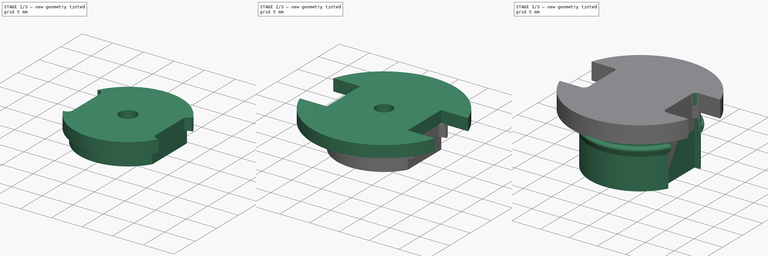
[diagram: build sequence overview — one tinted view per stage of 3, left to right]
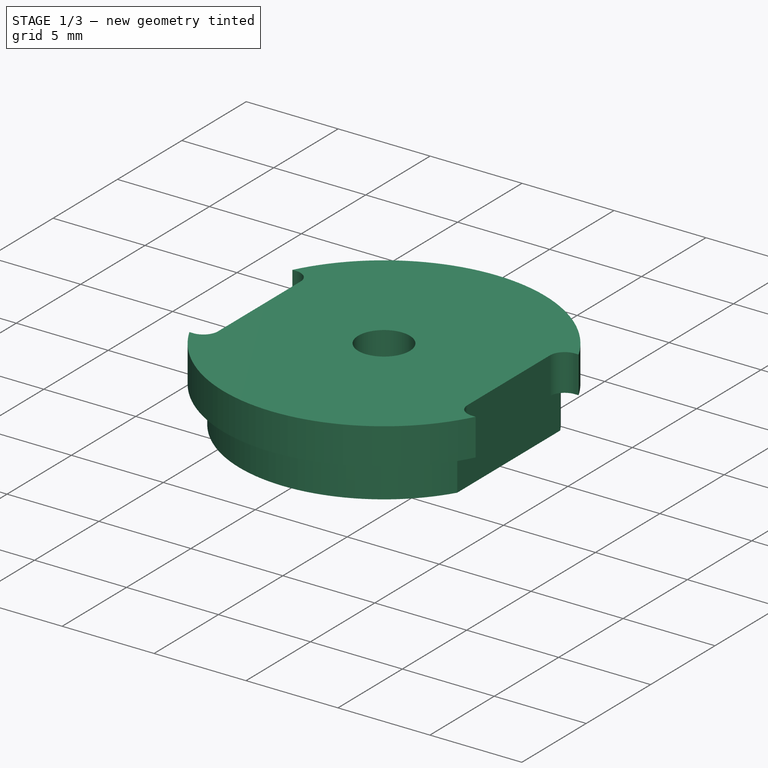
[diagram: stage 1 of 3 — iso view after this stage's code; geometry added in this stage tinted green]
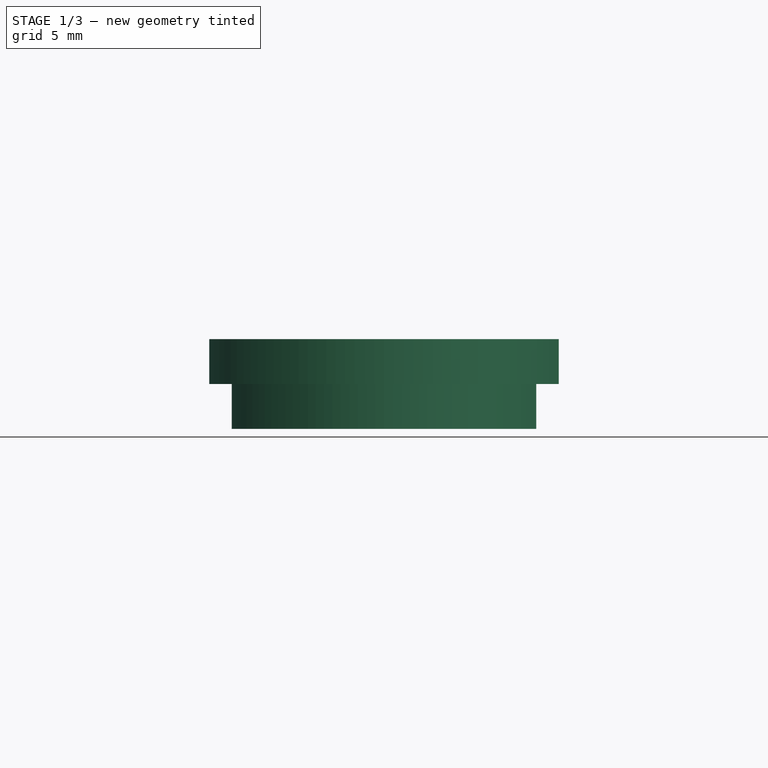
[diagram: stage 1 of 3 — front view after this stage's code; geometry added in this stage tinted green]
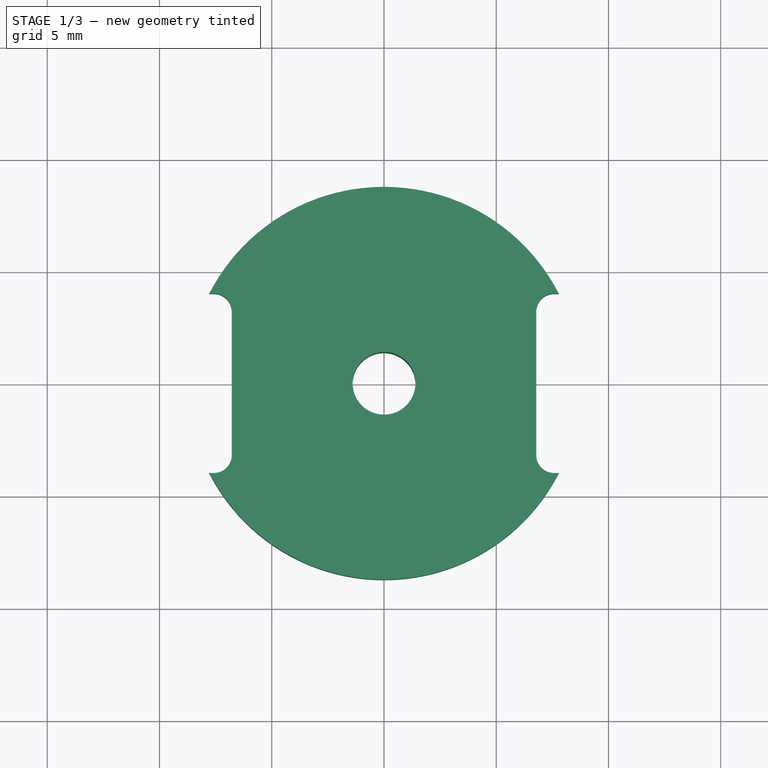
[diagram: stage 1 of 3 — top view after this stage's code; geometry added in this stage tinted green]
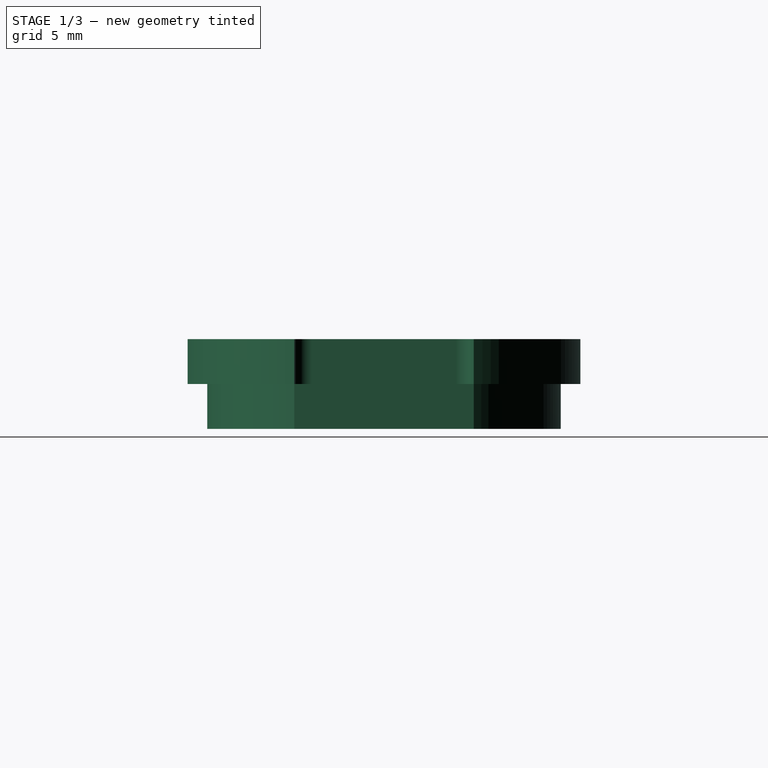
[diagram: stage 1 of 3 — right view after this stage's code; geometry added in this stage tinted green]
FCSTD DOCUMENT  (FreeCAD 2022.709R28846 (Git))
Label: beer_bottle_cap_Laser
License: Other
objects: Sketcher::SketchObject×5, PartDesign::Body×5, Part::Part2DObjectPython×4, Part::SubShapeBinder×3, PartDesign::Pad×3, PartDesign::Fillet×2, PartDesign::Revolution×1, PartDesign::Pocket×1, PartDesign::FeatureBase×1, PartDesign::ShapeBinder×1, App::Part×1
note: 41 computed .brp shape members not serialized (recipe doc carries the construction recipe); baked Part::Feature solids carry a one-line shape summary decoded from their .brp

FEATURE [Part::SubShapeBinder] Import001  label="Import001(Pad)"
  BindCopyOnChange = 0
  BindMode = 0
  ClaimChildren = false
  Context = -> Part [Body002.Import001.]
  FillStyle = 0
  Fuse = false
  MakeFace = false
  OffsetFill = false
  OffsetIntersection = false
  OffsetJoinType = 0
  OffsetOpenResult = false
  PartialLoad = false
  Relative = true
  Support = -> [Body001[Pad.]]
  TreeRank = 41
  _Version = 8
FEATURE [Part::SubShapeBinder] Import002  label="Import002(Pocket)"
  BindCopyOnChange = 0
  BindMode = 0
  ClaimChildren = false
  Context = -> Part [Body002.Import002.]
  FillStyle = 0
  Fuse = false
  MakeFace = false
  OffsetFill = false
  OffsetIntersection = false
  OffsetJoinType = 0
  OffsetOpenResult = false
  PartialLoad = false
  Relative = true
  Support = -> [Body[Pocket.]]
  TreeRank = 43
  _Version = 8
FEATURE [Sketcher::SketchObject] Sketch003
  ArcFitTolerance = 1e-06
  AttachmentSupport = -> [Import001]
  ExternalGeometry = -> [Import002,Import001]
  FullyConstrained = true
  MapMode = 5
  Placement = pos=(0,0,10) rot=(1,0,0;3.14159rad)
  Support = -> [Import001]
  TreeRank = 42
  sketch-geometry (9):
    g0: Circle CenterX=0 CenterY=0 CenterZ=0 NormalX=0 NormalY=0 NormalZ=1 AngleXU=0 Radius=1.4
    g1: ArcOfCircle CenterX=0 CenterY=0 CenterZ=0 NormalX=0 NormalY=0 NormalZ=1 AngleXU=0 Radius=8.75 StartAngle=0.47478 EndAngle=2.66681
    g2: LineSegment StartX=-7.78219 StartY=4 StartZ=0 EndX=-6.78219 EndY=4 EndZ=0
    g3: LineSegment StartX=-6.78219 StartY=4 StartZ=0 EndX=-6.78219 EndY=-4 EndZ=0
    g4: LineSegment StartX=-6.78219 StartY=-4 StartZ=0 EndX=-7.78219 EndY=-4 EndZ=0
    g5: LineSegment StartX=7.78219 StartY=4 StartZ=0 EndX=6.78219 EndY=4 EndZ=0
    g6: LineSegment StartX=6.78219 StartY=4 StartZ=0 EndX=6.78219 EndY=-4 EndZ=0
    g7: LineSegment StartX=6.78219 StartY=-4 StartZ=0 EndX=7.78219 EndY=-4 EndZ=0
    g8: ArcOfCircle CenterX=0 CenterY=0 CenterZ=0 NormalX=0 NormalY=0 NormalZ=1 AngleXU=0 Radius=8.75 StartAngle=3.61637 EndAngle=5.80841
  constraints (22):
    c: Coincident(g0,g-4)
    c: Coincident(g1,g0)
    c: Equal(g1,g-3)
    c: Equal(g-4,g0)
    c: Horizontal(g2)
    c: Coincident(g2,g3)
    c: Coincident(g3,g4)
    c: Horizontal(g4)
    c: Horizontal(g5)
    c: Coincident(g5,g6)
    c: Coincident(g6,g7)
    c: Horizontal(g7)
    c: Coincident(g2,g-6)
    c: Coincident(g3,g-6)
    c: Coincident(g5,g-5)
    c: Coincident(g6,g-5)
    c: Coincident(g1,g5)
    c: Coincident(g8,g7)
    c: Equal(g1,g8)
    c: Coincident(g1,g2)
    c: Coincident(g8,g4)
    c: Coincident(g1,g8)
FEATURE [PartDesign::Pad] Pad001
  ClaimChildren = false
  Direction = (1,1,1)
  Fit = 0
  FitJoin = 0
  InnerFit = 0
  InnerFitJoin = 0
  InnerTaperAngle = 0
  InnerTaperAngleRev = 0
  Length = 2
  Length2 = 100
  Linearize = true
  NewSolid = false
  Profile = -> Sketch003
  Suppress = false
  TreeRank = 44
  Type = 0
  _ProfileBasedVersion = 1
FEATURE [PartDesign::Body] Body001
  AutoGroupSolids = false
  ClaimAllChildren = false
  ExportMode = 0
  Group = -> [Import,Sketch002,Pad,Fillet]
  Origin = -> Origin002
  Tip = -> Fillet
  TreeRank = 27
  _ExportChildren = -> [Import,Pad,Fillet]
  _GroupVersion = 1
FEATURE [PartDesign::Fillet] Fillet001
  Base = -> Pad001 [Edge8,Edge5,Edge20,Edge17]
  BaseFeature = -> Pad001
  NewSolid = false
  Radius = 0.8
  SupportTransform = false
  Suppress = false
  TreeRank = 46
FEATURE [PartDesign::Body] Body004
  AutoGroupSolids = false
  BaseFeature = -> Body002
  ClaimAllChildren = false
  ExportMode = 0
  Group = -> [Clone]
  Origin = -> Origin005
  Placement = pos=(0,0,-4) rot=(0,0,1;0rad)
  Tip = -> Clone
  TreeRank = 70
  _ExportChildren = -> [Clone]
  _GroupVersion = 1
FEATURE [Part::Part2DObjectPython] Shape2DView  # Draft 2D object (typed FeaturePython)
  Base = -> Body001
  FuseArch = false
  HiddenLines = false
  InPlace = true
  Projection = (0,0,1)
  ProjectionMode = 0
  SegmentLength = 0.05
  Tessellation = false
  TreeRank = 71
  VisibleOnly = false
FEATURE [Part::Part2DObjectPython] Shape2DView001  # Draft 2D object (typed FeaturePython)
  Base = -> Body002
  FuseArch = false
  HiddenLines = false
  InPlace = true
  Projection = (0,0,1)
  ProjectionMode = 0
  SegmentLength = 0.05
  Tessellation = false
  TreeRank = 72
  VisibleOnly = false
FEATURE [Part::Part2DObjectPython] Shape2DView003  # Draft 2D object (typed FeaturePython)
  Base = -> Body004
  FuseArch = false
  HiddenLines = false
  InPlace = true
  Projection = (0,0,1)
  ProjectionMode = 0
  SegmentLength = 0.05
  Tessellation = false
  TreeRank = 74
  VisibleOnly = false
FEATURE [PartDesign::ShapeBinder] ShapeBinder
  Support = -> [Pad001]
  TraceSupport = false
  TreeRank = 75
FEATURE [Sketcher::SketchObject] Sketch004
  ArcFitTolerance = 1e-06
  AttachmentSupport = -> [ShapeBinder]
  ExternalGeometry = -> [ShapeBinder]
  FullyConstrained = true
  MapMode = 5
  Placement = pos=(0,0,8) rot=(1,0,0;3.14159rad)
  Support = -> [ShapeBinder]
  TreeRank = 58
  sketch-geometry (5):
    g0: LineSegment StartX=-6.78219 StartY=4 StartZ=0 EndX=-6.78219 EndY=-4 EndZ=0
    g1: LineSegment StartX=6.78219 StartY=4 StartZ=0 EndX=6.78219 EndY=-4 EndZ=0
    g2: Circle CenterX=0 CenterY=0 CenterZ=0 NormalX=0 NormalY=0 NormalZ=1 AngleXU=0 Radius=1.4
    g3: ArcOfCircle CenterX=0 CenterY=0 CenterZ=0 NormalX=0 NormalY=0 NormalZ=1 AngleXU=0 Radius=7.87389 StartAngle=0.532871 EndAngle=2.60872
    g4: ArcOfCircle CenterX=0 CenterY=0 CenterZ=0 NormalX=0 NormalY=0 NormalZ=1 AngleXU=0 Radius=7.87389 StartAngle=3.67446 EndAngle=5.75031
  constraints (12):
    c: Symmetric(g0,g0,g-1)
    c: Coincident(g2,g-5)
    c: Equal(g2,g-5)
    c: Coincident(g3,g2)
    c: Coincident(g3,g1)
    c: Coincident(g3,g0)
    c: Coincident(g4,g2)
    c: Coincident(g4,g1)
    c: Coincident(g4,g0)
    c: Equal(g1,g-3)
    c: Vertical(g1)
    c: Coincident(g0,g-4)
FEATURE [PartDesign::Pad] Pad002
  ClaimChildren = false
  Direction = (1,1,1)
  Fit = 0
  FitJoin = 0
  InnerFit = 0
  InnerFitJoin = 0
  InnerTaperAngle = 0
  InnerTaperAngleRev = 0
  Length = 2
  Length2 = 100
  Linearize = true
  NewSolid = false
  Profile = -> Sketch004
  Suppress = false
  TreeRank = 76
  Type = 0
  _ProfileBasedVersion = 1
FEATURE [PartDesign::Body] Body003
  AutoGroupSolids = false
  ClaimAllChildren = false
  ExportMode = 0
  Group = -> [Sketch004,ShapeBinder,Pad002]
  Origin = -> Origin004
  Tip = -> Pad002
  TreeRank = 56
  _ExportChildren = -> [ShapeBinder,Pad002]
  _GroupVersion = 1
FEATURE [App::Part] Part
  ClaimAllChildren = false
  ExportMode = 1
  Group = -> [Body,Body001,Body002,Body003,Body004]
  Origin = -> Origin
  TreeRank = 3
  _ExportChildren = -> [Body,Body001,Body002,Body003,Body004]
  _GroupVersion = 1
FEATURE [Part::Part2DObjectPython] Shape2DView002  # Draft 2D object (typed FeaturePython)
  Base = -> Body003
  FuseArch = false
  HiddenLines = false
  InPlace = true
  Projection = (0,0,1)
  ProjectionMode = 0
  SegmentLength = 0.05
  Tessellation = false
  TreeRank = 73
  VisibleOnly = false
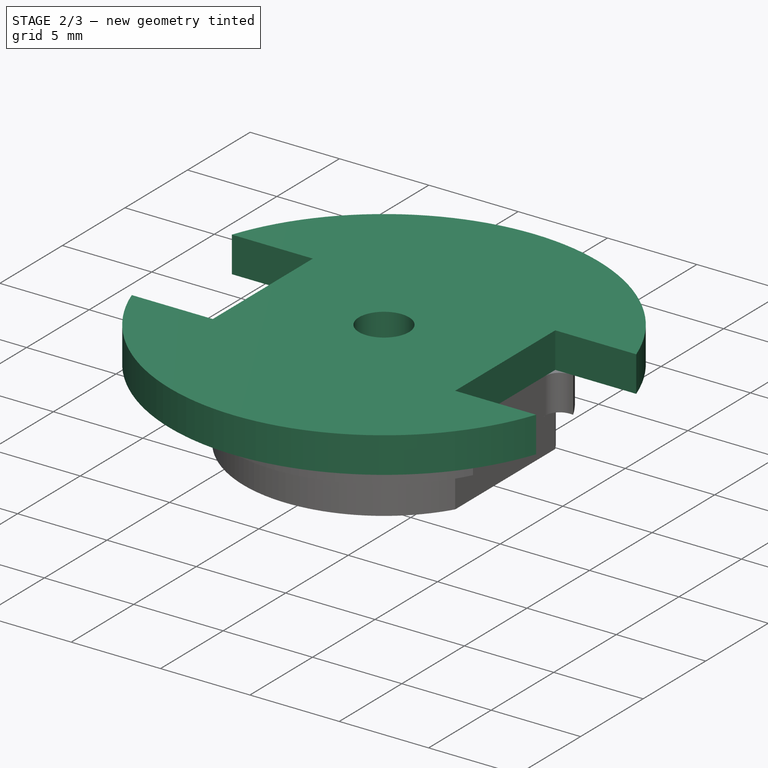
[diagram: stage 2 of 3 — iso view after this stage's code; geometry added in this stage tinted green]
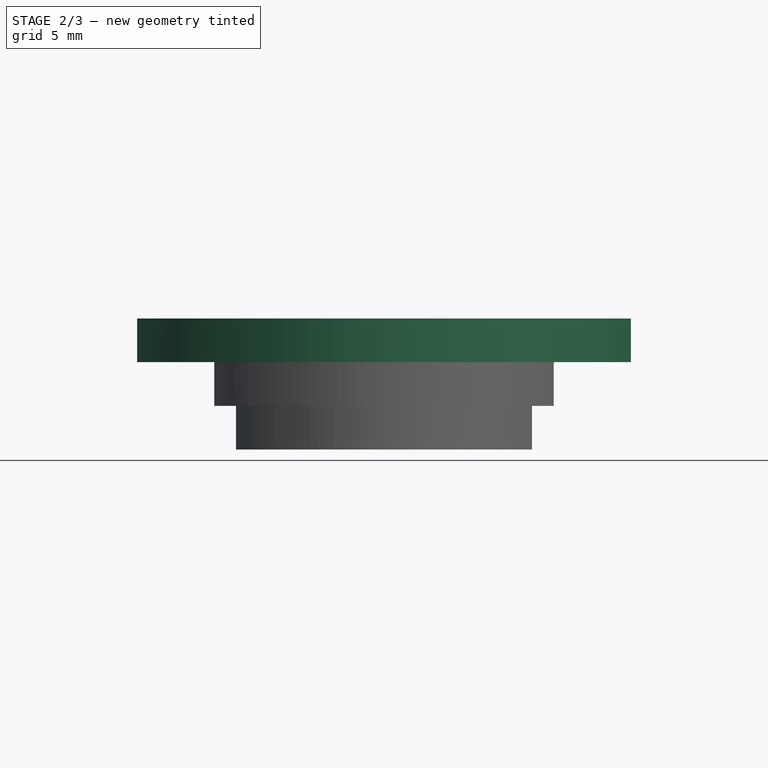
[diagram: stage 2 of 3 — front view after this stage's code; geometry added in this stage tinted green]
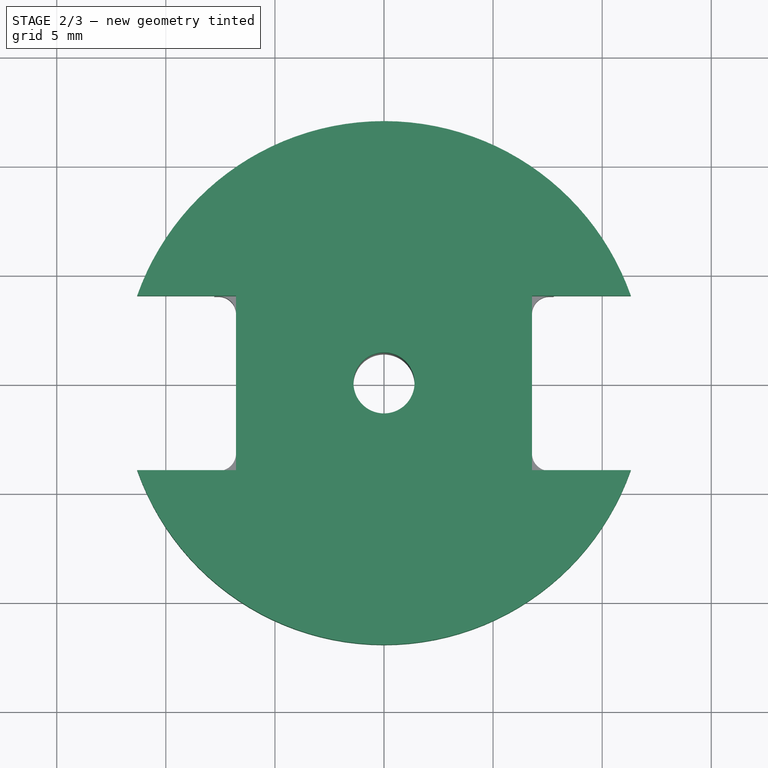
[diagram: stage 2 of 3 — top view after this stage's code; geometry added in this stage tinted green]
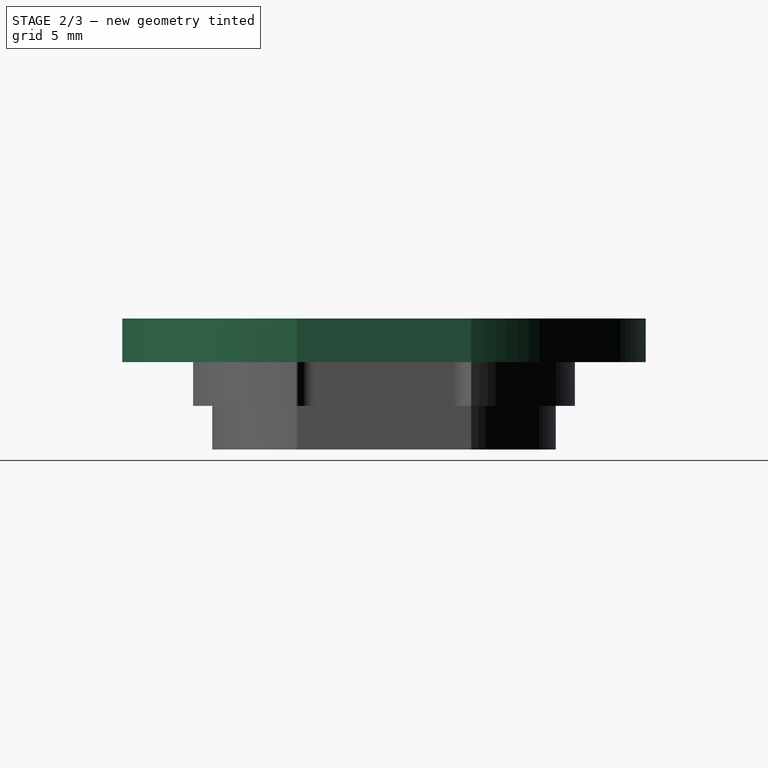
[diagram: stage 2 of 3 — right view after this stage's code; geometry added in this stage tinted green]
FEATURE [PartDesign::Body] Body
  AutoGroupSolids = false
  ClaimAllChildren = false
  ExportMode = 0
  Group = -> [Sketch,Revolution,Sketch001,Pocket]
  Origin = -> Origin001
  Tip = -> Pocket
  TreeRank = 13
  _ExportChildren = -> [Revolution,Pocket]
  _GroupVersion = 1
FEATURE [Part::SubShapeBinder] Import  label="Import(Pocket)"
  BindCopyOnChange = 0
  BindMode = 0
  ClaimChildren = false
  Context = -> Part [Body001.Import.]
  FillStyle = 0
  Fuse = false
  MakeFace = false
  OffsetFill = false
  OffsetIntersection = false
  OffsetJoinType = 0
  OffsetOpenResult = false
  PartialLoad = false
  Relative = true
  Support = -> [Body[Pocket.]]
  TreeRank = 28
  _Version = 8
FEATURE [Sketcher::SketchObject] Sketch002
  ArcFitTolerance = 1e-06
  AttachmentSupport = -> [Import]
  ExternalGeometry = -> [Import]
  FullyConstrained = true
  MapMode = 5
  Placement = pos=(0,0,12) rot=(0,0,1;0rad)
  Support = -> [Import]
  TreeRank = 29
  sketch-geometry (9):
    g0: LineSegment StartX=11.3137 StartY=-4 StartZ=0 EndX=6.78219 EndY=-4 EndZ=0
    g1: LineSegment StartX=6.78219 StartY=-4 StartZ=0 EndX=6.78219 EndY=4 EndZ=0
    g2: LineSegment StartX=6.78219 StartY=4 StartZ=0 EndX=11.3137 EndY=4 EndZ=0
    g3: ArcOfCircle CenterX=0 CenterY=0 CenterZ=0 NormalX=0 NormalY=0 NormalZ=1 AngleXU=0 Radius=12 StartAngle=0.339837 EndAngle=2.80176
    g4: LineSegment StartX=-11.3137 StartY=4 StartZ=0 EndX=-6.78219 EndY=4 EndZ=0
    g5: LineSegment StartX=-6.78219 StartY=4 StartZ=0 EndX=-6.78219 EndY=-4 EndZ=0
    g6: LineSegment StartX=-6.78219 StartY=-4 StartZ=0 EndX=-11.3137 EndY=-4 EndZ=0
    g7: ArcOfCircle CenterX=0 CenterY=0 CenterZ=0 NormalX=0 NormalY=0 NormalZ=1 AngleXU=0 Radius=12 StartAngle=3.48143 EndAngle=5.94335
    g8: Circle CenterX=0 CenterY=0 CenterZ=0 NormalX=0 NormalY=0 NormalZ=1 AngleXU=0 Radius=1.4
  constraints (21):
    c: Coincident(g-6,g0)
    c: Coincident(g0,g1)
    c: Coincident(g1,g-5)
    c: Vertical(g1)
    c: Coincident(g1,g2)
    c: Coincident(g2,g-3)
    c: Coincident(g3,g-3)
    c: Coincident(g3,g4)
    c: Coincident(g4,g-4)
    c: Coincident(g4,g5)
    c: Coincident(g5,g-4)
    c: Coincident(g5,g6)
    c: Coincident(g6,g-6)
    c: Coincident(g7,g0)
    c: Horizontal(g0)
    c: Coincident(g3,g7)
    c: Coincident(g3,g-6)
    c: PointOnObject(g3,g2)
    c: PointOnObject(g7,g6)
    c: Coincident(g8,g3)
    c: Diameter(g8) = 2.8
FEATURE [PartDesign::Pad] Pad
  ClaimChildren = false
  Direction = (1,1,1)
  Fit = 0
  FitJoin = 0
  InnerFit = 0
  InnerFitJoin = 0
  InnerTaperAngle = 0
  InnerTaperAngleRev = 0
  Length = 2
  Length2 = 100
  Linearize = true
  NewSolid = false
  Profile = -> Sketch002
  Reversed = true
  Suppress = false
  TreeRank = 30
  Type = 0
  _ProfileBasedVersion = 1
FEATURE [PartDesign::Body] Body002
  AutoGroupSolids = false
  ClaimAllChildren = false
  ExportMode = 0
  Group = -> [Import001,Sketch003,Import002,Pad001,Fillet001]
  Origin = -> Origin003
  Tip = -> Fillet001
  TreeRank = 40
  _ExportChildren = -> [Import001,Import002,Pad001,Fillet001]
  _GroupVersion = 1
FEATURE [PartDesign::FeatureBase] Clone
  BaseFeature = -> Body002
  NewSolid = false
  Suppress = false
  TreeRank = 69
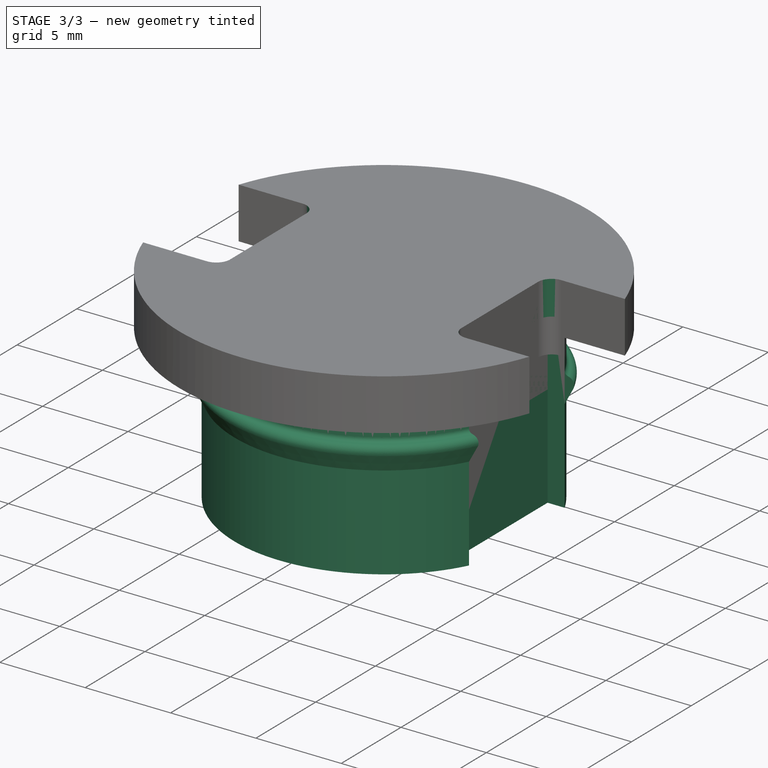
[diagram: stage 3 of 3 — iso view after this stage's code; geometry added in this stage tinted green]
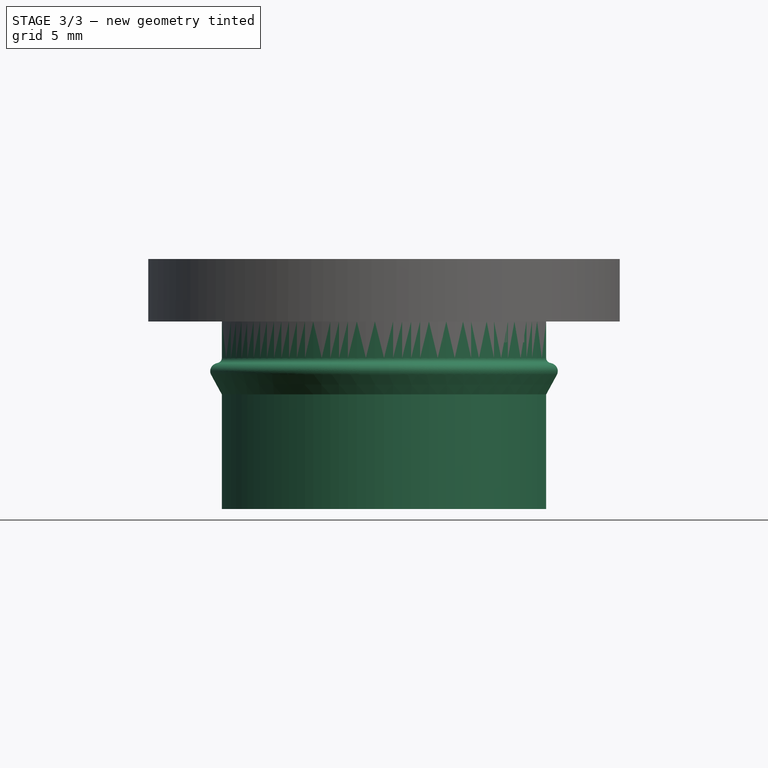
[diagram: stage 3 of 3 — front view after this stage's code; geometry added in this stage tinted green]
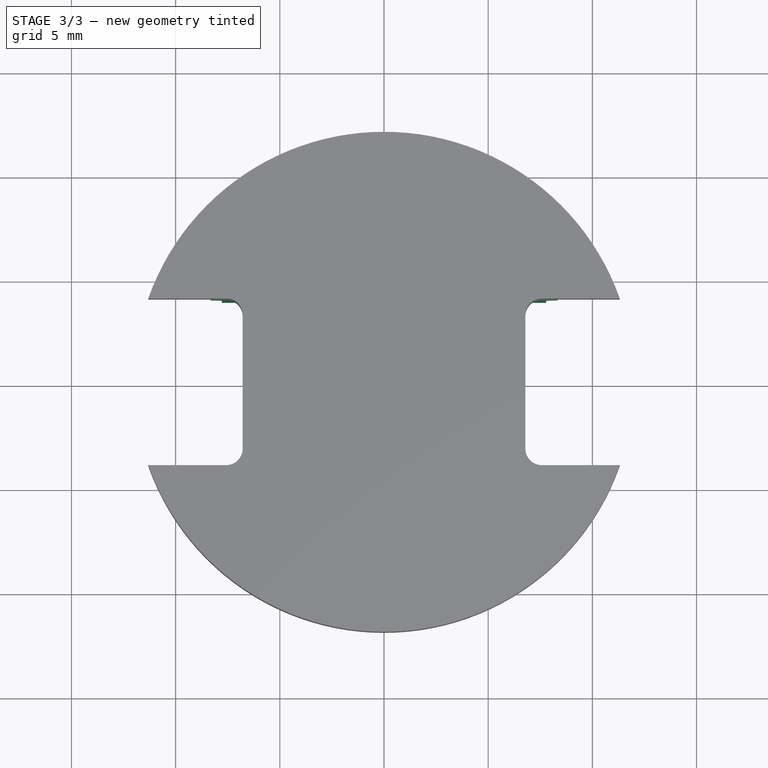
[diagram: stage 3 of 3 — top view after this stage's code; geometry added in this stage tinted green]
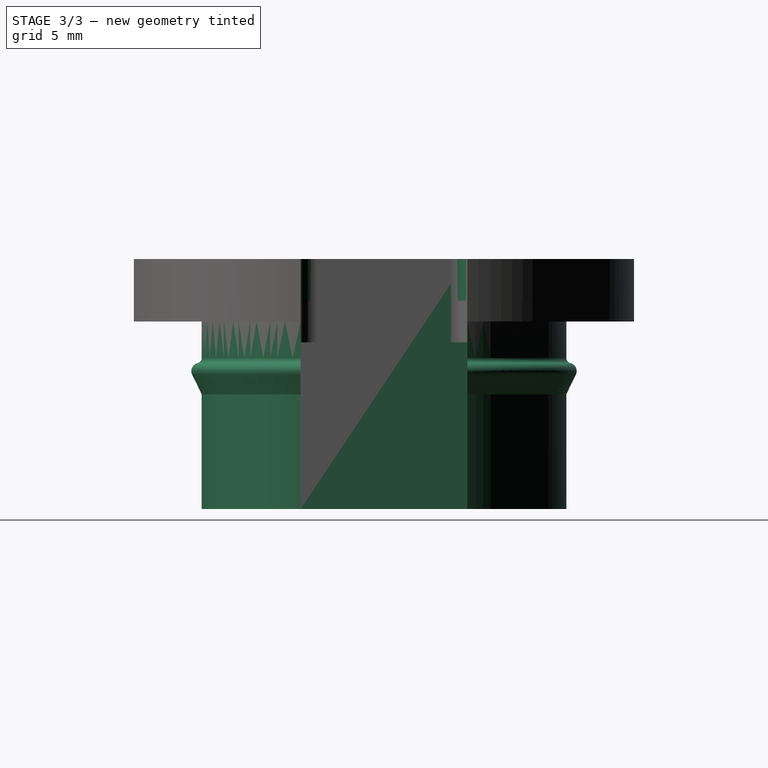
[diagram: stage 3 of 3 — right view after this stage's code; geometry added in this stage tinted green]
FEATURE [Sketcher::SketchObject] Sketch
  ArcFitTolerance = 1e-06
  AttachmentSupport = -> [XZ_Plane]
  FullyConstrained = true
  MapMode = 5
  Placement = pos=(0,0,0) rot=(1,0,0;1.5708rad)
  Support = -> [XZ_Plane]
  TreeRank = 14
  sketch-geometry (11):
    g0: LineSegment StartX=0 StartY=0 StartZ=0 EndX=-8.75 EndY=0 EndZ=0
    g1: LineSegment StartX=-8.75 StartY=0 StartZ=0 EndX=-8.75 EndY=5.5 EndZ=0
    g2: LineSegment StartX=-8.75 StartY=7.25 StartZ=0 EndX=-8.75 EndY=9 EndZ=0
    g3: LineSegment StartX=-8.75 StartY=9 StartZ=0 EndX=-12 EndY=9 EndZ=0
    g4: LineSegment StartX=-12 StartY=9 StartZ=0 EndX=-12 EndY=12 EndZ=0
    g5: LineSegment StartX=-12 StartY=12 StartZ=0 EndX=0 EndY=12 EndZ=0
    g6: LineSegment StartX=0 StartY=12 StartZ=0 EndX=0 EndY=0 EndZ=0
    g7: ArcOfCircle CenterX=-8.85 CenterY=6.61754 CenterZ=0 NormalX=0 NormalY=0 NormalZ=1 AngleXU=0 Radius=0.4 StartAngle=1.80366 EndAngle=3.59536
    g8: LineSegment StartX=-9.20952 StartY=6.4422 StartZ=0 EndX=-8.75 EndY=5.5 EndZ=0
    g9: LineSegment [constr] StartX=-9.25 StartY=6.61754 StartZ=0 EndX=-9.25 EndY=9 EndZ=0
    g10: ArcOfCircle CenterX=-9 CenterY=7.25 CenterZ=0 NormalX=0 NormalY=0 NormalZ=1 AngleXU=0 Radius=0.25 StartAngle=4.94526 EndAngle=6.28319
  constraints (32):
    c: Coincident(g-1,g0)
    c: PointOnObject(g0,g-1)
    c: Coincident(g0,g1)
    c: Vertical(g1)
    c: Vertical(g2)
    c: Coincident(g2,g3)
    c: Horizontal(g3)
    c: Coincident(g3,g4)
    c: Vertical(g4)
    c: Coincident(g4,g5)
    c: Horizontal(g5)
    c: Coincident(g5,g6)
    c: Coincident(g6,g0)
    c: Vertical(g6)
    c: DistanceX(g0,g0) = 8.75
    c: DistanceY(g6,g6) = 12
    c: DistanceX(g5,g5) = 12
    c: DistanceY(g4,g4) = 3
    c: Tangent(g7,g8) = -1.5708
    c: Coincident(g8,g1)
    c: Radius(g7) = 0.4
    c: PointOnObject(g9,g7)
    c: PointOnObject(g9,g3)
    c: Vertical(g9)
    c: DistanceX(g9,g2) = 0.5
    c: Tangent(g7,g9)
    c: Radius(g10) = 0.25
    c: Tangent(g10,g7) = 1.5708
    c: Vertical(g2,g1)
    c: DistanceY(g1,g2) = 1.75
    c: Tangent(g2,g10) = -1.5708
    c: DistanceY(g2,g2) = 1.75
FEATURE [PartDesign::Revolution] Revolution
  Angle = 360
  Axis = (0,-2e-16,1)
  Base = (0,0,0)
  ClaimChildren = false
  Fit = 0
  FitJoin = 0
  InnerFit = 0
  InnerFitJoin = 0
  NewSolid = false
  Placement = pos=(0,0,0) rot=(1,0,0;1.5708rad)
  Profile = -> Sketch
  ReferenceAxis = -> Sketch [V_Axis]
  Suppress = false
  TreeRank = 15
  _ProfileBasedVersion = 1
FEATURE [Sketcher::SketchObject] Sketch001
  ArcFitTolerance = 1e-06
  AttachmentSupport = -> [Revolution]
  ExternalGeometry = -> [Revolution]
  FullyConstrained = true
  MapMode = 5
  Placement = pos=(0,-2.7e-15,12) rot=(0,0,1;3.14159rad)
  Support = -> [Revolution]
  TreeRank = 16
  sketch-geometry (9):
    g0: LineSegment StartX=-12.7822 StartY=4 StartZ=0 EndX=-6.78219 EndY=4 EndZ=0
    g1: LineSegment StartX=-6.78219 StartY=4 StartZ=0 EndX=-6.78219 EndY=-4 EndZ=0
    g2: LineSegment StartX=-6.78219 StartY=-4 StartZ=0 EndX=-12.7822 EndY=-4 EndZ=0
    g3: LineSegment StartX=-12.7822 StartY=-4 StartZ=0 EndX=-12.7822 EndY=4 EndZ=0
    g4: GeomPoint [constr] X=-7.78219 Y=4 Z=0
    g5: LineSegment StartX=6.78219 StartY=4 StartZ=0 EndX=12.7822 EndY=4 EndZ=0
    g6: LineSegment StartX=12.7822 StartY=4 StartZ=0 EndX=12.7822 EndY=-4 EndZ=0
    g7: LineSegment StartX=12.7822 StartY=-4 StartZ=0 EndX=6.78219 EndY=-4 EndZ=0
    g8: LineSegment StartX=6.78219 StartY=-4 StartZ=0 EndX=6.78219 EndY=4 EndZ=0
  constraints (24):
    c: Coincident(g0,g1)
    c: Coincident(g1,g2)
    c: Coincident(g2,g3)
    c: Coincident(g3,g0)
    c: Horizontal(g0)
    c: Horizontal(g2)
    c: Vertical(g3)
    c: DistanceY(g1,g1) = 8
    c: Symmetric(g0,g1,g-1)
    c: PointOnObject(g4,g-3)
    c: PointOnObject(g4,g0)
    c: DistanceX(g4,g0) = 1
    c: DistanceX(g2,g2) = 6
    c: Coincident(g5,g6)
    c: Coincident(g6,g7)
    c: Coincident(g7,g8)
    c: Coincident(g8,g5)
    c: Horizontal(g5)
    c: Horizontal(g7)
    c: Vertical(g6)
    c: Vertical(g8)
    c: Equal(g5,g0)
    c: Equal(g3,g6)
    c: Symmetric(g5,g0,g-2)
FEATURE [PartDesign::Pocket] Pocket
  BaseFeature = -> Revolution
  ClaimChildren = false
  Fit = 0
  FitJoin = 0
  InnerFit = 0
  InnerFitJoin = 0
  InnerTaperAngle = 0
  InnerTaperAngleRev = 0
  Length = 5
  Length2 = 100
  Linearize = true
  NewSolid = false
  Placement = pos=(0,0,0) rot=(1,0,0;1.5708rad)
  Profile = -> Sketch001
  Suppress = false
  TreeRank = 17
  Type = 1
  _ProfileBasedVersion = 1
FEATURE [PartDesign::Fillet] Fillet
  Base = -> Pad [Edge1,Edge2,Edge5,Edge8,Edge11,Edge14,Edge17,Edge20]
  BaseFeature = -> Pad
  NewSolid = false
  Radius = 0.8
  SupportTransform = false
  Suppress = false
  TreeRank = 45
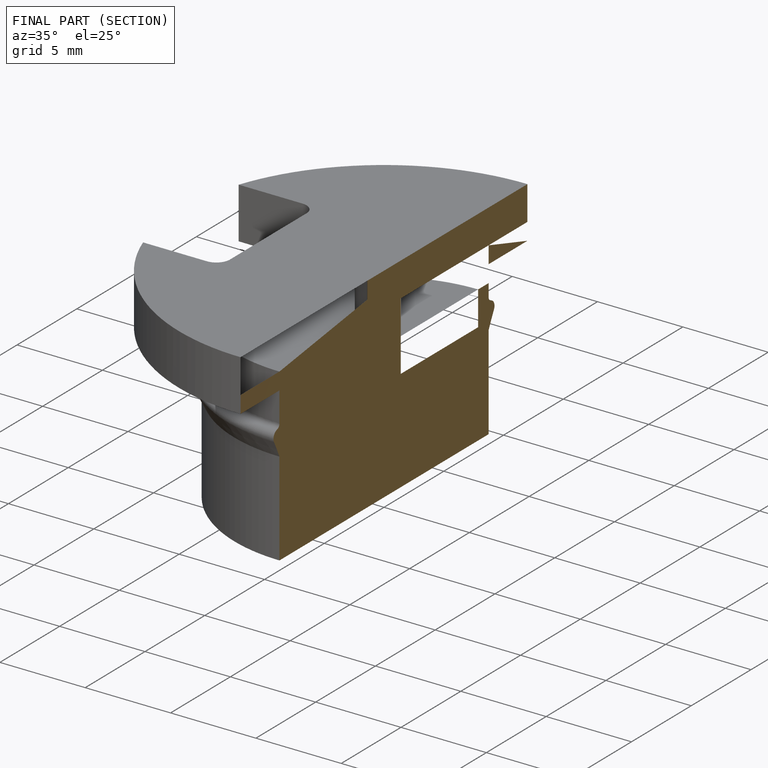
[diagram: finished part — half-section view (interior)]
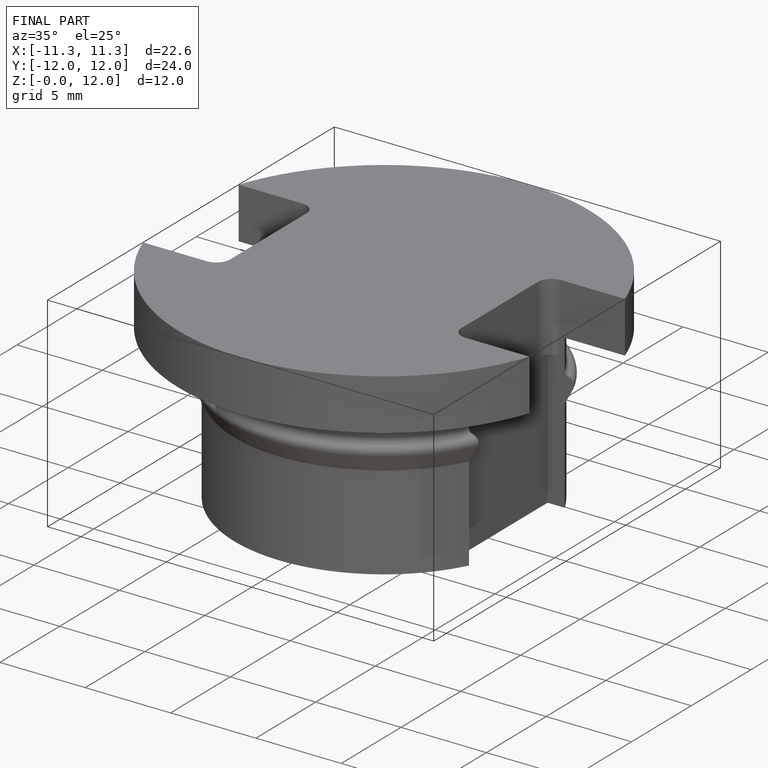
[diagram: finished part — iso view with bounding-box wireframe]
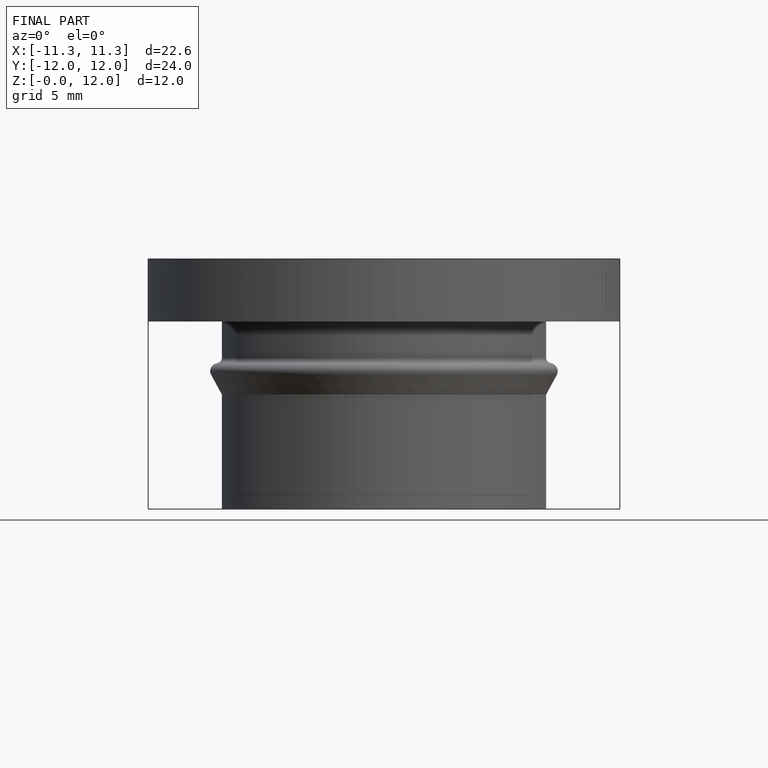
[diagram: finished part — front view with bounding-box wireframe]
